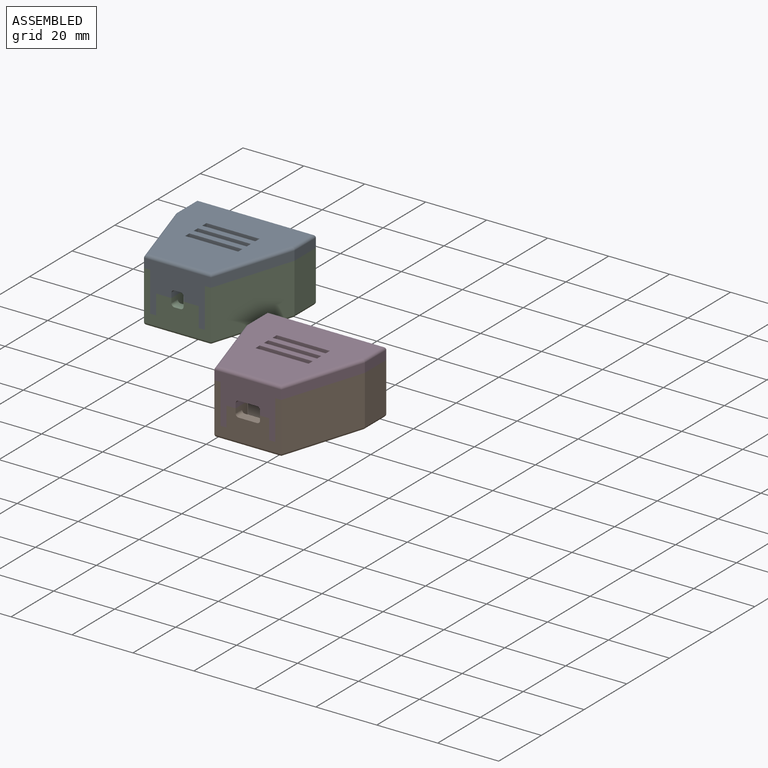
[diagram: assembled view]
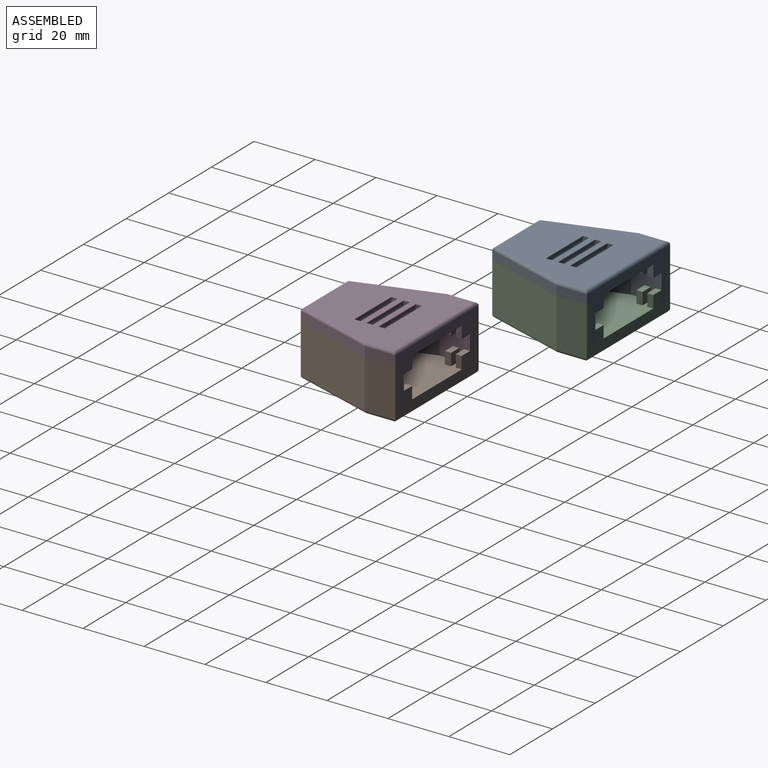
[diagram: assembled view, second angle]
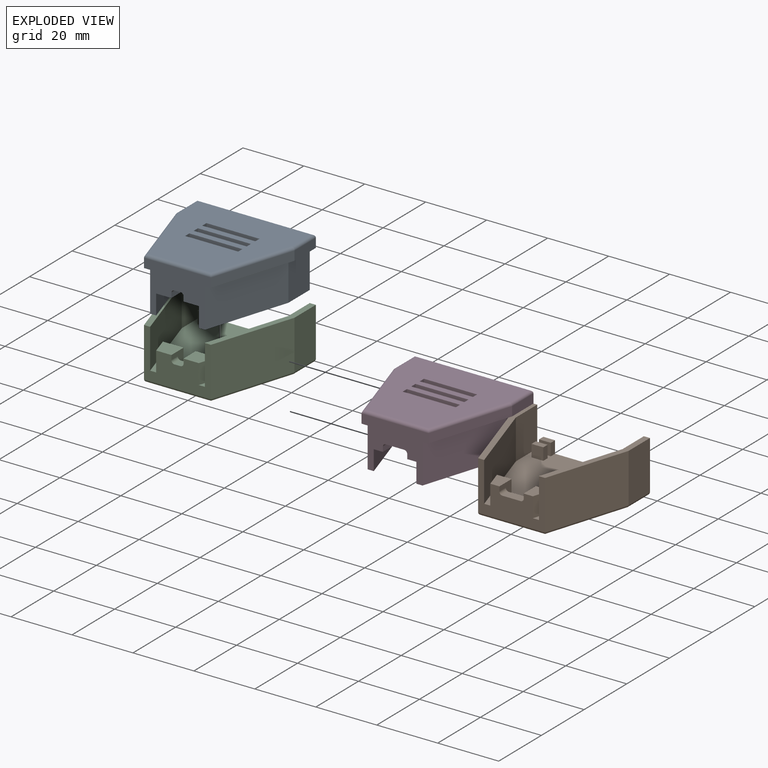
[diagram: exploded view]
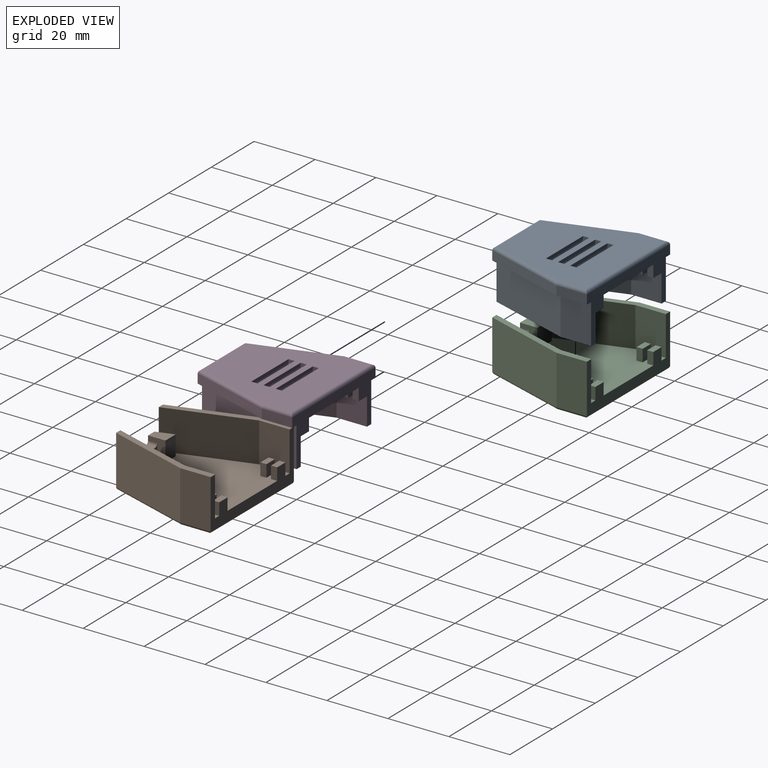
[diagram: exploded view, second angle]
ASSEMBLY  parts=4 mates=2
PART A: 74 faces, bbox 39x37x17 mm
  f0: plane 34x31mm, normal (0,0,1), area 807.4mm2, adj f4,f10,f11,f13,f14,f16,f17,f18
  f1: plane 37x10.52mm, normal (0,0,1), area 74mm2, adj f4,f7,f8,f9,f57,f58
  f2: plane 37x10.52mm, normal (0,0,1), area 74mm2, adj f4,f5,f6,f7,f52,f53
  f3: plane 37x35mm, normal (0,0,-1), area 974.9mm2, adj f26,f27,f28,f29,f30,f31,f32,f33
  f4: plane 39x16mm, normal (0,1,0), area 199.9mm2, adj f0,f1,f2,f5,f9,f10,f12,f14
  f5: plane 10x3mm, normal (-1,0,0), area 30mm2, adj f2,f4,f6,f29
  f6: plane 27x8.52mm, normal (-0.95,-0.3,0), area 84.9mm2, adj f2,f5,f7,f27
  f7: plane 21.97x16mm, normal (0,-1,0), area 199.1mm2, adj f1,f2,f6,f8,f25,f26,f44,f46
  f8: plane 27x8.52mm, normal (0.95,-0.3,0), area 84.9mm2, adj f1,f7,f9,f28
  f9: plane 10x3mm, normal (1,0,0), area 30mm2, adj f1,f4,f8,f30
  f10: plane 4x2mm, normal (-1,0,0), area 8mm2, adj f0,f4,f11,f12
  f11: plane 4x3.86mm, normal (0,-1,0), area 15.4mm2, adj f0,f10,f12,f56
  f12: plane 3.86x2mm, normal (0,0,1), area 7.7mm2, adj f4,f10,f11,f56
  f13: plane 4x3.86mm, normal (0,-1,0), area 15.4mm2, adj f0,f14,f15,f51
  f14: plane 4x2mm, normal (1,0,0), area 8mm2, adj f0,f4,f13,f15
  f15: plane 3.86x2mm, normal (0,0,1), area 7.7mm2, adj f4,f13,f14,f51
  f16: plane 4x3.86mm, normal (0,1,0), area 15.4mm2, adj f0,f18,f19,f51
  f17: plane 4x3.86mm, normal (0,-1,0), area 15.4mm2, adj f0,f18,f19,f51
  f18: plane 4x2mm, normal (1,0,0), area 8mm2, adj f0,f16,f17,f19
  f19: plane 3.86x2mm, normal (0,0,1), area 7.7mm2, adj f16,f17,f18,f51
  f20: plane 4x3.86mm, normal (0,1,0), area 15.4mm2, adj f0,f21,f23,f56
  f21: plane 4x2mm, normal (-1,0,0), area 8mm2, adj f0,f20,f22,f23
  f22: plane 4x3.86mm, normal (0,-1,0), area 15.4mm2, adj f0,f21,f23,f56
  f23: plane 3.86x2mm, normal (0,0,1), area 7.7mm2, adj f20,f21,f22,f56
  f24: plane 5x4mm, normal (0,1,0), area 16.4mm2, adj f0,f25,f44,f47,f72,f73
  f25: plane 3x2mm, normal (0,0,1), area 6mm2, adj f7,f24,f72,f73
  f26: cylinder r=1mm len=21.97mm, axis (-1,0,0), area 33.7mm2, adj f3,f7,f27,f28
  f27: cylinder r=1mm len=27.3mm, axis (-0.3,0.95,0), area 44mm2, adj f3,f6,f26,f29
  f28: cylinder r=1mm len=27.3mm, axis (-0.3,-0.95,0), area 44mm2, adj f3,f8,f26,f30
  f29: cylinder r=1mm len=10mm, axis (0,1,0), area 15mm2, adj f3,f5,f27,f31
  f30: cylinder r=1mm len=10mm, axis (0,-1,0), area 15mm2, adj f3,f9,f28,f31
  f31: cylinder r=1mm len=39mm, axis (1,0,0), area 60.1mm2, adj f3,f4,f29,f30
  f32: plane 2x1mm, normal (-1,0,0), area 2mm2, adj f3,f33,f35,f60
  f33: plane 17.4x1mm, normal (0,1,0), area 17.4mm2, adj f3,f32,f34,f61
  f34: plane 2x1mm, normal (1,0,0), area 2mm2, adj f3,f33,f35,f63
  f35: plane 17.4x1mm, normal (0,-1,0), area 17.4mm2, adj f3,f32,f34,f62
  f36: plane 2x1mm, normal (1,0,0), area 2mm2, adj f3,f37,f39,f67
  f37: plane 17.4x1mm, normal (0,-1,0), area 17.4mm2, adj f3,f36,f38,f66
  f38: plane 2x1mm, normal (-1,0,0), area 2mm2, adj f3,f37,f39,f64
  f39: plane 17.4x1mm, normal (0,1,0), area 17.4mm2, adj f3,f36,f38,f65
  f40: plane 17.4x1mm, normal (0,1,0), area 17.4mm2, adj f3,f41,f43,f69
  f41: plane 2x1mm, normal (1,0,0), area 2mm2, adj f3,f40,f42,f68
  f42: plane 17.4x1mm, normal (0,-1,0), area 17.4mm2, adj f3,f41,f43,f70
  f43: plane 2x1mm, normal (-1,0,0), area 2mm2, adj f3,f40,f42,f71
  f44: plane 6.5x5.68mm, normal (1,0,0), area 22mm2, adj f0,f7,f24,f45,f46,f73
  f45: plane 6.78x6.5mm, normal (0,1,0), area 44.1mm2, adj f0,f44,f46,f50
  f46: plane 6.78x5.68mm, normal (0,0,1), area 33.4mm2, adj f7,f44,f45,f50
  f47: plane 6.5x5.68mm, normal (-1,0,0), area 22mm2, adj f0,f7,f24,f48,f49,f72
  f48: plane 6.78x6.5mm, normal (0,1,0), area 44.1mm2, adj f0,f47,f49,f55
  f49: plane 6.78x5.68mm, normal (0,0,1), area 33.4mm2, adj f7,f47,f48,f55
  f50: plane 27x13mm, normal (0.95,0.3,0), area 329.3mm2, adj f0,f7,f45,f46,f51,f54
  f51: plane 13x10mm, normal (1,0,0), area 114mm2, adj f0,f4,f13,f15,f16,f17,f19,f50
  f52: plane 27x13mm, normal (-0.95,-0.3,0), area 368mm2, adj f2,f7,f53,f54
  f53: plane 13x10mm, normal (-1,0,0), area 130mm2, adj f2,f4,f52,f54
  f54: plane 37x10.52mm, normal (0,0,1), area 74mm2, adj f4,f7,f50,f51,f52,f53
  f55: plane 27x13mm, normal (-0.95,0.3,0), area 329.3mm2, adj f0,f7,f48,f49,f56,f59
  f56: plane 13x10mm, normal (-1,0,0), area 114mm2, adj f0,f4,f11,f12,f20,f22,f23,f55
  f57: plane 27x13mm, normal (0.95,-0.3,0), area 368mm2, adj f1,f7,f58,f59
  f58: plane 13x10mm, normal (1,0,0), area 130mm2, adj f1,f4,f57,f59
  f59: plane 37x10.52mm, normal (0,0,1), area 74mm2, adj f4,f7,f55,f56,f57,f58
  f60: bspline ~2.2x1mm, area 2.1mm2, adj f32,f61,f62
  f61: bspline ~19.14x1mm, area 27.1mm2, adj f33,f60,f62,f63
  f62: bspline ~19.14x1mm, area 27.1mm2, adj f35,f60,f61,f63
  f63: bspline ~2.2x1mm, area 2.1mm2, adj f34,f61,f62
  f64: bspline ~2.2x1mm, area 2.1mm2, adj f38,f65,f66
  f65: bspline ~19.14x1mm, area 27.1mm2, adj f39,f64,f66,f67
  f66: bspline ~19.14x1mm, area 27.1mm2, adj f37,f64,f65,f67
  f67: bspline ~2.2x1mm, area 2.1mm2, adj f36,f65,f66
  f68: bspline ~2.2x1mm, area 2.1mm2, adj f41,f69,f70
  f69: bspline ~19.14x1mm, area 27.1mm2, adj f40,f68,f70,f71
  f70: bspline ~19.14x1mm, area 27.1mm2, adj f42,f68,f69,f71
  f71: bspline ~2.2x1mm, area 2.1mm2, adj f43,f69,f70
  f72: cylinder r=1mm len=3mm, axis (0,-1,0), area 4.7mm2, adj f7,f24,f25,f47
  f73: cylinder r=1mm len=3mm, axis (0,1,0), area 4.7mm2, adj f7,f24,f25,f44
PART B: 74 faces, bbox 39x37x17 mm
  f0: plane 37x35mm, normal (0,0,1), area 966.1mm2, adj f2,f5,f8,f9,f10,f12,f13,f14
  f1: plane 37x35mm, normal (0,0,-1), area 974.9mm2, adj f28,f29,f30,f31,f32,f33,f34,f35
  f2: plane 39x16mm, normal (0,1,0), area 199.9mm2, adj f0,f3,f7,f8,f10,f11,f12,f14
  f3: plane 16x10mm, normal (-1,0,0), area 160mm2, adj f2,f4,f31,f56
  f4: plane 27x16mm, normal (-0.95,-0.3,0), area 453mm2, adj f3,f5,f29,f56
  f5: plane 21.97x16mm, normal (0,-1,0), area 189.1mm2, adj f0,f4,f6,f27,f28,f46,f48,f49
  f6: plane 27x16mm, normal (0.95,-0.3,0), area 453mm2, adj f5,f7,f30,f59
  f7: plane 16x10mm, normal (1,0,0), area 160mm2, adj f2,f6,f32,f59
  f8: plane 4x2mm, normal (-1,0,0), area 8mm2, adj f0,f2,f9,f11
  f9: plane 4x3.86mm, normal (0,-1,0), area 15.4mm2, adj f0,f8,f10,f11
  f10: plane 4x2mm, normal (1,0,0), area 8mm2, adj f0,f2,f9,f11
  f11: plane 3.86x2mm, normal (0,0,1), area 7.7mm2, adj f2,f8,f9,f10
  f12: plane 4x2mm, normal (-1,0,0), area 8mm2, adj f0,f2,f13,f15
  f13: plane 4x3.86mm, normal (0,-1,0), area 15.4mm2, adj f0,f12,f14,f15
  f14: plane 4x2mm, normal (1,0,0), area 8mm2, adj f0,f2,f13,f15
  f15: plane 3.86x2mm, normal (0,0,1), area 7.7mm2, adj f2,f12,f13,f14
  f16: plane 4x3.86mm, normal (0,1,0), area 15.4mm2, adj f0,f17,f19,f20
  f17: plane 4x2mm, normal (-1,0,0), area 8mm2, adj f0,f16,f18,f20
  f18: plane 4x3.86mm, normal (0,-1,0), area 15.4mm2, adj f0,f17,f19,f20
  f19: plane 4x2mm, normal (1,0,0), area 8mm2, adj f0,f16,f18,f20
  f20: plane 3.86x2mm, normal (0,0,1), area 7.7mm2, adj f16,f17,f18,f19
  f21: plane 4x2mm, normal (1,0,0), area 8mm2, adj f0,f22,f24,f25
  f22: plane 4x3.86mm, normal (0,1,0), area 15.4mm2, adj f0,f21,f23,f25
  f23: plane 4x2mm, normal (-1,0,0), area 8mm2, adj f0,f22,f24,f25
  f24: plane 4x3.86mm, normal (0,-1,0), area 15.4mm2, adj f0,f21,f23,f25
  f25: plane 3.86x2mm, normal (0,0,1), area 7.7mm2, adj f21,f22,f23,f24
  f26: plane 8x5mm, normal (0,1,0), area 32.4mm2, adj f0,f27,f46,f50,f72,f73
  f27: plane 6x3mm, normal (0,0,1), area 18mm2, adj f5,f26,f72,f73
  f28: cylinder r=1mm len=21.97mm, axis (-1,0,0), area 33.7mm2, adj f1,f5,f29,f30
  f29: cylinder r=1mm len=27.3mm, axis (-0.3,0.95,0), area 44mm2, adj f1,f4,f28,f31
  f30: cylinder r=1mm len=27.3mm, axis (-0.3,-0.95,0), area 44mm2, adj f1,f6,f28,f32
  f31: cylinder r=1mm len=10mm, axis (0,1,0), area 15mm2, adj f1,f3,f29,f33
  f32: cylinder r=1mm len=10mm, axis (0,-1,0), area 15mm2, adj f1,f7,f30,f33
  f33: cylinder r=1mm len=39mm, axis (1,0,0), area 60.1mm2, adj f1,f2,f31,f32
  f34: plane 2x1mm, normal (-1,0,0), area 2mm2, adj f1,f35,f37,f60
  f35: plane 17.4x1mm, normal (0,1,0), area 17.4mm2, adj f1,f34,f36,f61
  f36: plane 2x1mm, normal (1,0,0), area 2mm2, adj f1,f35,f37,f63
  f37: plane 17.4x1mm, normal (0,-1,0), area 17.4mm2, adj f1,f34,f36,f62
  f38: plane 2x1mm, normal (1,0,0), area 2mm2, adj f1,f39,f41,f67
  f39: plane 17.4x1mm, normal (0,-1,0), area 17.4mm2, adj f1,f38,f40,f66
  f40: plane 2x1mm, normal (-1,0,0), area 2mm2, adj f1,f39,f41,f64
  f41: plane 17.4x1mm, normal (0,1,0), area 17.4mm2, adj f1,f38,f40,f65
  f42: plane 17.4x1mm, normal (0,1,0), area 17.4mm2, adj f1,f43,f45,f69
  f43: plane 2x1mm, normal (1,0,0), area 2mm2, adj f1,f42,f44,f68
  f44: plane 17.4x1mm, normal (0,-1,0), area 17.4mm2, adj f1,f43,f45,f70
  f45: plane 2x1mm, normal (-1,0,0), area 2mm2, adj f1,f42,f44,f71
  f46: plane 6.5x5.68mm, normal (1,0,0), area 22mm2, adj f0,f5,f26,f47,f49,f73
  f47: plane 6.5x4.78mm, normal (0,1,0), area 31.1mm2, adj f0,f46,f48,f49
  f48: plane 6.5x5.68mm, normal (-0.95,-0.3,0), area 38.7mm2, adj f0,f5,f47,f49
  f49: plane 5.68x4.78mm, normal (0,0,1), area 22.1mm2, adj f5,f46,f47,f48
  f50: plane 6.5x5.68mm, normal (-1,0,0), area 22mm2, adj f0,f5,f26,f52,f53,f72
  f51: plane 6.5x5.68mm, normal (0.95,-0.3,0), area 38.7mm2, adj f0,f5,f52,f53
  f52: plane 6.5x4.78mm, normal (0,1,0), area 31.1mm2, adj f0,f50,f51,f53
  f53: plane 5.68x4.78mm, normal (0,0,1), area 22.1mm2, adj f5,f50,f51,f52
  f54: plane 27x13mm, normal (0.95,0.3,0), area 368mm2, adj f0,f5,f55,f56
  f55: plane 13x10mm, normal (1,0,0), area 130mm2, adj f0,f2,f54,f56
  f56: plane 37x10.52mm, normal (0,0,1), area 74mm2, adj f2,f3,f4,f5,f54,f55
  f57: plane 13x10mm, normal (-1,0,0), area 130mm2, adj f0,f2,f58,f59
  f58: plane 27x13mm, normal (-0.95,0.3,0), area 368mm2, adj f0,f5,f57,f59
  f59: plane 37x10.52mm, normal (0,0,1), area 74mm2, adj f2,f5,f6,f7,f57,f58
  f60: bspline ~2.2x1mm, area 2.1mm2, adj f34,f61,f62
  f61: bspline ~19.14x1mm, area 27.1mm2, adj f35,f60,f62,f63
  f62: bspline ~19.14x1mm, area 27.1mm2, adj f37,f60,f61,f63
  f63: bspline ~2.2x1mm, area 2.1mm2, adj f36,f61,f62
  f64: bspline ~2.2x1mm, area 2.1mm2, adj f40,f65,f66
  f65: bspline ~19.14x1mm, area 27.1mm2, adj f41,f64,f66,f67
  f66: bspline ~19.14x1mm, area 27.1mm2, adj f39,f64,f65,f67
  f67: bspline ~2.2x1mm, area 2.1mm2, adj f38,f65,f66
  f68: bspline ~2.2x1mm, area 2.1mm2, adj f43,f69,f70
  f69: bspline ~19.14x1mm, area 27.1mm2, adj f42,f68,f70,f71
  f70: bspline ~19.14x1mm, area 27.1mm2, adj f44,f68,f69,f71
  f71: bspline ~2.2x1mm, area 2.1mm2, adj f45,f69,f70
  f72: cylinder r=1mm len=3mm, axis (0,-1,0), area 4.7mm2, adj f5,f26,f27,f50
  f73: cylinder r=1mm len=3mm, axis (0,1,0), area 4.7mm2, adj f5,f26,f27,f46
PART C: 74 faces, bbox 39x37x17 mm
  f0: plane 37x35mm, normal (0,0,1), area 955.4mm2, adj f2,f5,f8,f9,f10,f12,f13,f14
  f1: plane 37x35mm, normal (0,0,-1), area 974.9mm2, adj f28,f29,f30,f31,f32,f33,f34,f35
  f2: plane 39x16mm, normal (0,1,0), area 199.9mm2, adj f0,f3,f7,f8,f10,f11,f12,f14
  f3: plane 16x10mm, normal (-1,0,0), area 160mm2, adj f2,f4,f31,f56
  f4: plane 27x16mm, normal (-0.95,-0.3,0), area 453mm2, adj f3,f5,f29,f56
  f5: plane 21.97x16mm, normal (0,-1,0), area 199.1mm2, adj f0,f4,f6,f27,f28,f46,f48,f49
  f6: plane 27x16mm, normal (0.95,-0.3,0), area 453mm2, adj f5,f7,f30,f59
  f7: plane 16x10mm, normal (1,0,0), area 160mm2, adj f2,f6,f32,f59
  f8: plane 4x2mm, normal (-1,0,0), area 8mm2, adj f0,f2,f9,f11
  f9: plane 4x3.86mm, normal (0,-1,0), area 15.4mm2, adj f0,f8,f10,f11
  f10: plane 4x2mm, normal (1,0,0), area 8mm2, adj f0,f2,f9,f11
  f11: plane 3.86x2mm, normal (0,0,1), area 7.7mm2, adj f2,f8,f9,f10
  f12: plane 4x2mm, normal (-1,0,0), area 8mm2, adj f0,f2,f13,f15
  f13: plane 4x3.86mm, normal (0,-1,0), area 15.4mm2, adj f0,f12,f14,f15
  f14: plane 4x2mm, normal (1,0,0), area 8mm2, adj f0,f2,f13,f15
  f15: plane 3.86x2mm, normal (0,0,1), area 7.7mm2, adj f2,f12,f13,f14
  f16: plane 4x3.86mm, normal (0,1,0), area 15.4mm2, adj f0,f17,f19,f20
  f17: plane 4x2mm, normal (-1,0,0), area 8mm2, adj f0,f16,f18,f20
  f18: plane 4x3.86mm, normal (0,-1,0), area 15.4mm2, adj f0,f17,f19,f20
  f19: plane 4x2mm, normal (1,0,0), area 8mm2, adj f0,f16,f18,f20
  f20: plane 3.86x2mm, normal (0,0,1), area 7.7mm2, adj f16,f17,f18,f19
  f21: plane 4x2mm, normal (1,0,0), area 8mm2, adj f0,f22,f24,f25
  f22: plane 4x3.86mm, normal (0,1,0), area 15.4mm2, adj f0,f21,f23,f25
  f23: plane 4x2mm, normal (-1,0,0), area 8mm2, adj f0,f22,f24,f25
  f24: plane 4x3.86mm, normal (0,-1,0), area 15.4mm2, adj f0,f21,f23,f25
  f25: plane 3.86x2mm, normal (0,0,1), area 7.7mm2, adj f21,f22,f23,f24
  f26: plane 5x4mm, normal (0,1,0), area 16.4mm2, adj f0,f27,f46,f50,f72,f73
  f27: plane 3x2mm, normal (0,0,1), area 6mm2, adj f5,f26,f72,f73
  f28: cylinder r=1mm len=21.97mm, axis (-1,0,0), area 33.7mm2, adj f1,f5,f29,f30
  f29: cylinder r=1mm len=27.3mm, axis (-0.3,0.95,0), area 44mm2, adj f1,f4,f28,f31
  f30: cylinder r=1mm len=27.3mm, axis (-0.3,-0.95,0), area 44mm2, adj f1,f6,f28,f32
  f31: cylinder r=1mm len=10mm, axis (0,1,0), area 15mm2, adj f1,f3,f29,f33
  f32: cylinder r=1mm len=10mm, axis (0,-1,0), area 15mm2, adj f1,f7,f30,f33
  f33: cylinder r=1mm len=39mm, axis (1,0,0), area 60.1mm2, adj f1,f2,f31,f32
  f34: plane 2x1mm, normal (-1,0,0), area 2mm2, adj f1,f35,f37,f60
  f35: plane 17.4x1mm, normal (0,1,0), area 17.4mm2, adj f1,f34,f36,f61
  f36: plane 2x1mm, normal (1,0,0), area 2mm2, adj f1,f35,f37,f63
  f37: plane 17.4x1mm, normal (0,-1,0), area 17.4mm2, adj f1,f34,f36,f62
  f38: plane 2x1mm, normal (1,0,0), area 2mm2, adj f1,f39,f41,f67
  f39: plane 17.4x1mm, normal (0,-1,0), area 17.4mm2, adj f1,f38,f40,f66
  f40: plane 2x1mm, normal (-1,0,0), area 2mm2, adj f1,f39,f41,f64
  f41: plane 17.4x1mm, normal (0,1,0), area 17.4mm2, adj f1,f38,f40,f65
  f42: plane 17.4x1mm, normal (0,1,0), area 17.4mm2, adj f1,f43,f45,f69
  f43: plane 2x1mm, normal (1,0,0), area 2mm2, adj f1,f42,f44,f68
  f44: plane 17.4x1mm, normal (0,-1,0), area 17.4mm2, adj f1,f43,f45,f70
  f45: plane 2x1mm, normal (-1,0,0), area 2mm2, adj f1,f42,f44,f71
  f46: plane 6.5x5.68mm, normal (1,0,0), area 22mm2, adj f0,f5,f26,f47,f49,f73
  f47: plane 6.78x6.5mm, normal (0,1,0), area 44.1mm2, adj f0,f46,f48,f49
  f48: plane 6.5x5.68mm, normal (-0.95,-0.3,0), area 38.7mm2, adj f0,f5,f47,f49
  f49: plane 6.78x5.68mm, normal (0,0,1), area 33.4mm2, adj f5,f46,f47,f48
  f50: plane 6.5x5.68mm, normal (-1,0,0), area 22mm2, adj f0,f5,f26,f52,f53,f72
  f51: plane 6.5x5.68mm, normal (0.95,-0.3,0), area 38.7mm2, adj f0,f5,f52,f53
  f52: plane 6.78x6.5mm, normal (0,1,0), area 44.1mm2, adj f0,f50,f51,f53
  f53: plane 6.78x5.68mm, normal (0,0,1), area 33.4mm2, adj f5,f50,f51,f52
  f54: plane 27x13mm, normal (0.95,0.3,0), area 368mm2, adj f0,f5,f55,f56
  f55: plane 13x10mm, normal (1,0,0), area 130mm2, adj f0,f2,f54,f56
  f56: plane 37x10.52mm, normal (0,0,1), area 74mm2, adj f2,f3,f4,f5,f54,f55
  f57: plane 13x10mm, normal (-1,0,0), area 130mm2, adj f0,f2,f58,f59
  f58: plane 27x13mm, normal (-0.95,0.3,0), area 368mm2, adj f0,f5,f57,f59
  f59: plane 37x10.52mm, normal (0,0,1), area 74mm2, adj f2,f5,f6,f7,f57,f58
  f60: bspline ~2.2x1mm, area 2.1mm2, adj f34,f61,f62
  f61: bspline ~19.14x1mm, area 27.1mm2, adj f35,f60,f62,f63
  f62: bspline ~19.14x1mm, area 27.1mm2, adj f37,f60,f61,f63
  f63: bspline ~2.2x1mm, area 2.1mm2, adj f36,f61,f62
  f64: bspline ~2.2x1mm, area 2.1mm2, adj f40,f65,f66
  f65: bspline ~19.14x1mm, area 27.1mm2, adj f41,f64,f66,f67
  f66: bspline ~19.14x1mm, area 27.1mm2, adj f39,f64,f65,f67
  f67: bspline ~2.2x1mm, area 2.1mm2, adj f38,f65,f66
  f68: bspline ~2.2x1mm, area 2.1mm2, adj f43,f69,f70
  f69: bspline ~19.14x1mm, area 27.1mm2, adj f42,f68,f70,f71
  f70: bspline ~19.14x1mm, area 27.1mm2, adj f44,f68,f69,f71
  f71: bspline ~2.2x1mm, area 2.1mm2, adj f45,f69,f70
  f72: cylinder r=1mm len=3mm, axis (0,-1,0), area 4.7mm2, adj f5,f26,f27,f50
  f73: cylinder r=1mm len=3mm, axis (0,1,0), area 4.7mm2, adj f5,f26,f27,f46
PART D: 74 faces, bbox 39x37x17 mm
  f0: plane 34x31mm, normal (0,0,1), area 818.1mm2, adj f4,f10,f11,f13,f14,f16,f17,f18
  f1: plane 37x10.52mm, normal (0,0,1), area 74mm2, adj f4,f7,f8,f9,f57,f58
  f2: plane 37x10.52mm, normal (0,0,1), area 74mm2, adj f4,f5,f6,f7,f52,f53
  f3: plane 37x35mm, normal (0,0,-1), area 974.9mm2, adj f26,f27,f28,f29,f30,f31,f32,f33
  f4: plane 39x16mm, normal (0,1,0), area 199.9mm2, adj f0,f1,f2,f5,f9,f10,f12,f14
  f5: plane 10x3mm, normal (-1,0,0), area 30mm2, adj f2,f4,f6,f29
  f6: plane 27x8.52mm, normal (-0.95,-0.3,0), area 84.9mm2, adj f2,f5,f7,f27
  f7: plane 21.97x16mm, normal (0,-1,0), area 189.1mm2, adj f1,f2,f6,f8,f25,f26,f44,f46
  f8: plane 27x8.52mm, normal (0.95,-0.3,0), area 84.9mm2, adj f1,f7,f9,f28
  f9: plane 10x3mm, normal (1,0,0), area 30mm2, adj f1,f4,f8,f30
  f10: plane 4x2mm, normal (-1,0,0), area 8mm2, adj f0,f4,f11,f12
  f11: plane 4x3.86mm, normal (0,-1,0), area 15.4mm2, adj f0,f10,f12,f56
  f12: plane 3.86x2mm, normal (0,0,1), area 7.7mm2, adj f4,f10,f11,f56
  f13: plane 4x3.86mm, normal (0,-1,0), area 15.4mm2, adj f0,f14,f15,f51
  f14: plane 4x2mm, normal (1,0,0), area 8mm2, adj f0,f4,f13,f15
  f15: plane 3.86x2mm, normal (0,0,1), area 7.7mm2, adj f4,f13,f14,f51
  f16: plane 4x3.86mm, normal (0,1,0), area 15.4mm2, adj f0,f18,f19,f51
  f17: plane 4x3.86mm, normal (0,-1,0), area 15.4mm2, adj f0,f18,f19,f51
  f18: plane 4x2mm, normal (1,0,0), area 8mm2, adj f0,f16,f17,f19
  f19: plane 3.86x2mm, normal (0,0,1), area 7.7mm2, adj f16,f17,f18,f51
  f20: plane 4x3.86mm, normal (0,1,0), area 15.4mm2, adj f0,f21,f23,f56
  f21: plane 4x2mm, normal (-1,0,0), area 8mm2, adj f0,f20,f22,f23
  f22: plane 4x3.86mm, normal (0,-1,0), area 15.4mm2, adj f0,f21,f23,f56
  f23: plane 3.86x2mm, normal (0,0,1), area 7.7mm2, adj f20,f21,f22,f56
  f24: plane 8x5mm, normal (0,1,0), area 32.4mm2, adj f0,f25,f44,f47,f72,f73
  f25: plane 6x3mm, normal (0,0,1), area 18mm2, adj f7,f24,f72,f73
  f26: cylinder r=1mm len=21.97mm, axis (-1,0,0), area 33.7mm2, adj f3,f7,f27,f28
  f27: cylinder r=1mm len=27.3mm, axis (-0.3,0.95,0), area 44mm2, adj f3,f6,f26,f29
  f28: cylinder r=1mm len=27.3mm, axis (-0.3,-0.95,0), area 44mm2, adj f3,f8,f26,f30
  f29: cylinder r=1mm len=10mm, axis (0,1,0), area 15mm2, adj f3,f5,f27,f31
  f30: cylinder r=1mm len=10mm, axis (0,-1,0), area 15mm2, adj f3,f9,f28,f31
  f31: cylinder r=1mm len=39mm, axis (1,0,0), area 60.1mm2, adj f3,f4,f29,f30
  f32: plane 2x1mm, normal (-1,0,0), area 2mm2, adj f3,f33,f35,f60
  f33: plane 17.4x1mm, normal (0,1,0), area 17.4mm2, adj f3,f32,f34,f61
  f34: plane 2x1mm, normal (1,0,0), area 2mm2, adj f3,f33,f35,f63
  f35: plane 17.4x1mm, normal (0,-1,0), area 17.4mm2, adj f3,f32,f34,f62
  f36: plane 2x1mm, normal (1,0,0), area 2mm2, adj f3,f37,f39,f67
  f37: plane 17.4x1mm, normal (0,-1,0), area 17.4mm2, adj f3,f36,f38,f66
  f38: plane 2x1mm, normal (-1,0,0), area 2mm2, adj f3,f37,f39,f64
  f39: plane 17.4x1mm, normal (0,1,0), area 17.4mm2, adj f3,f36,f38,f65
  f40: plane 17.4x1mm, normal (0,1,0), area 17.4mm2, adj f3,f41,f43,f69
  f41: plane 2x1mm, normal (1,0,0), area 2mm2, adj f3,f40,f42,f68
  f42: plane 17.4x1mm, normal (0,-1,0), area 17.4mm2, adj f3,f41,f43,f70
  f43: plane 2x1mm, normal (-1,0,0), area 2mm2, adj f3,f40,f42,f71
  f44: plane 6.5x5.68mm, normal (1,0,0), area 22mm2, adj f0,f7,f24,f45,f46,f73
  f45: plane 6.5x4.78mm, normal (0,1,0), area 31.1mm2, adj f0,f44,f46,f50
  f46: plane 5.68x4.78mm, normal (0,0,1), area 22.1mm2, adj f7,f44,f45,f50
  f47: plane 6.5x5.68mm, normal (-1,0,0), area 22mm2, adj f0,f7,f24,f48,f49,f72
  f48: plane 6.5x4.78mm, normal (0,1,0), area 31.1mm2, adj f0,f47,f49,f55
  f49: plane 5.68x4.78mm, normal (0,0,1), area 22.1mm2, adj f7,f47,f48,f55
  f50: plane 27x13mm, normal (0.95,0.3,0), area 329.3mm2, adj f0,f7,f45,f46,f51,f54
  f51: plane 13x10mm, normal (1,0,0), area 114mm2, adj f0,f4,f13,f15,f16,f17,f19,f50
  f52: plane 27x13mm, normal (-0.95,-0.3,0), area 368mm2, adj f2,f7,f53,f54
  f53: plane 13x10mm, normal (-1,0,0), area 130mm2, adj f2,f4,f52,f54
  f54: plane 37x10.52mm, normal (0,0,1), area 74mm2, adj f4,f7,f50,f51,f52,f53
  f55: plane 27x13mm, normal (-0.95,0.3,0), area 329.3mm2, adj f0,f7,f48,f49,f56,f59
  f56: plane 13x10mm, normal (-1,0,0), area 114mm2, adj f0,f4,f11,f12,f20,f22,f23,f55
  f57: plane 27x13mm, normal (0.95,-0.3,0), area 368mm2, adj f1,f7,f58,f59
  f58: plane 13x10mm, normal (1,0,0), area 130mm2, adj f1,f4,f57,f59
  f59: plane 37x10.52mm, normal (0,0,1), area 74mm2, adj f4,f7,f55,f56,f57,f58
  f60: bspline ~2.2x1mm, area 2.1mm2, adj f32,f61,f62
  f61: bspline ~19.14x1mm, area 27.1mm2, adj f33,f60,f62,f63
  f62: bspline ~19.14x1mm, area 27.1mm2, adj f35,f60,f61,f63
  f63: bspline ~2.2x1mm, area 2.1mm2, adj f34,f61,f62
  f64: bspline ~2.2x1mm, area 2.1mm2, adj f38,f65,f66
  f65: bspline ~19.14x1mm, area 27.1mm2, adj f39,f64,f66,f67
  f66: bspline ~19.14x1mm, area 27.1mm2, adj f37,f64,f65,f67
  f67: bspline ~2.2x1mm, area 2.1mm2, adj f36,f65,f66
  f68: bspline ~2.2x1mm, area 2.1mm2, adj f41,f69,f70
  f69: bspline ~19.14x1mm, area 27.1mm2, adj f40,f68,f70,f71
  f70: bspline ~19.14x1mm, area 27.1mm2, adj f42,f68,f69,f71
  f71: bspline ~2.2x1mm, area 2.1mm2, adj f43,f69,f70
  f72: cylinder r=1mm len=3mm, axis (0,-1,0), area 4.7mm2, adj f7,f24,f25,f47
  f73: cylinder r=1mm len=3mm, axis (0,1,0), area 4.7mm2, adj f7,f24,f25,f44
PLACE A rot(axis=(0,1,0),180deg) t=(52.32,16.66,-25.2)mm
PLACE B t=(66.33,-14.65,-47.45)mm
PLACE C t=(21.32,16.66,-38.2)mm
PLACE D rot(axis=(0,1,0),180deg) t=(97.33,-14.65,-34.45)mm
MATE fastened D.f54 <-> B.f0  axis (0,0,-1) through (90.81,-51.65,-47.45)mm
MATE fastened A.f59 <-> C.f0  axis (0,0,-1) through (19.32,16.66,-38.2)mm
